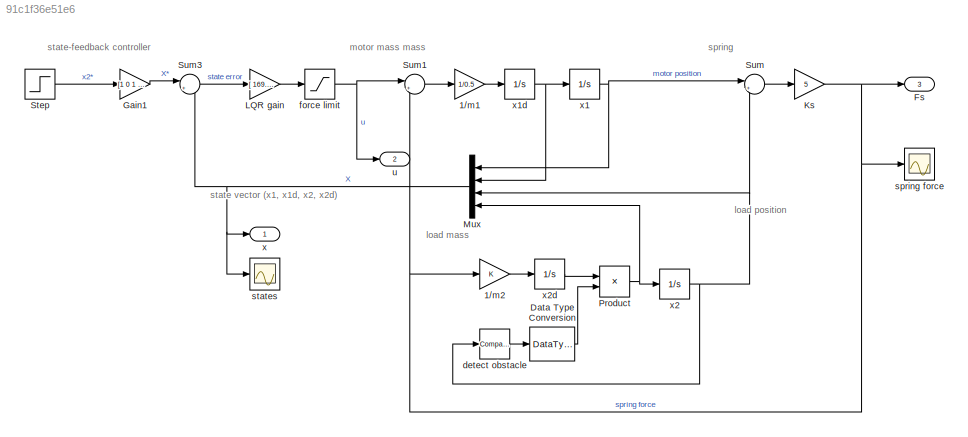
MODEL slx_91c1f36e51e6
KIND model
CONFIG AbsTol = auto
CONFIG FixedStep = auto
CONFIG MaxStep = auto
CONFIG MinStep = auto
CONFIG RelTol = 1e-3
CONFIG SampleTimeConstraint = Unconstrained
CONFIG Solver = ode45
CONFIG SolverMode = Auto
CONFIG SolverName = ode45
CONFIG StartTime = 0.0
CONFIG StopTime = 5
BLOCK [Gain] 1//m1
  Gain = 1/0.5
  OutDataTypeStr = Inherit: Inherit via internal rule
  ParamDataTypeStr = Inherit: Inherit via internal rule
  SaturateOnIntegerOverflow = off
BLOCK [Gain] 1//m2
  OutDataTypeStr = Inherit: Inherit via internal rule
  ParamDataTypeStr = Inherit: Inherit via internal rule
  SaturateOnIntegerOverflow = off
BLOCK [DataTypeConversion] Data Type Conversion
  OutDataTypeStr = double
  RndMeth = Floor
  SaturateOnIntegerOverflow = off
BLOCK [Outport] Fs
  IconDisplay = Port number
  Port = 3
BLOCK [Gain] Gain1
  Gain = [1 0 1 0]
  OutDataTypeStr = Inherit: Inherit via internal rule
  ParamDataTypeStr = Inherit: Inherit via internal rule
  SaturateOnIntegerOverflow = off
BLOCK [Gain] Ks
  Gain = 5
  OutDataTypeStr = Inherit: Inherit via internal rule
  ParamDataTypeStr = Inherit: Inherit via internal rule
  SaturateOnIntegerOverflow = off
BLOCK [Gain] LQR gain
  Gain = [  169.9563   62.9010  -19.9563   71.1092\n]
  Multiplication = Matrix(K*u)
  OutDataTypeStr = Inherit: Inherit via internal rule
  ParamDataTypeStr = Inherit: Inherit via internal rule
  SaturateOnIntegerOverflow = off
BLOCK [Mux] Mux
  DisplayOption = bar
  Ports = [4, 1]
BLOCK [Product] Product
  InputSameDT = off
  OutDataTypeStr = Inherit: Inherit via internal rule
  Ports = [2, 1]
  RndMeth = Floor
  SaturateOnIntegerOverflow = off
BLOCK [Step] Step
  SampleTime = 0
BLOCK [Sum] Sum
  IconShape = round
  InputSameDT = off
  Inputs = |+-
  OutDataTypeStr = Inherit: Inherit via internal rule
  Ports = [2, 1]
  SaturateOnIntegerOverflow = off
BLOCK [Sum] Sum1
  IconShape = round
  InputSameDT = off
  Inputs = |+-
  OutDataTypeStr = Inherit: Inherit via internal rule
  Ports = [2, 1]
  SaturateOnIntegerOverflow = off
BLOCK [Sum] Sum3
  IconShape = round
  InputSameDT = off
  Inputs = |+-
  OutDataTypeStr = Inherit: Inherit via internal rule
  Ports = [2, 1]
  SaturateOnIntegerOverflow = off
BLOCK [Reference] detect obstacle  REF=simulink/Logic and Bit
Operations/Compare
To Constant
  OutDataTypeStr = boolean
  Ports = [1, 1]
  SourceBlock = simulink/Logic and Bit\nOperations/Compare\nTo Constant
  SourceType = Compare To Constant
  ZeroCross = on
  const = 0.8
  relop = <
BLOCK [Saturate] force limit
  InputPortMap = u0
  LowerLimit = -2
  Ports = [1, 1]
  UpperLimit = 2
BLOCK [Scope] spring force
  DataFormat = StructureWithTime
  Decimation = 1
  Floating = off
  Grid = on
  LimitDataPoints = off
  MaxDataPoints = 5000
  NumInputPorts = 1
  Ports = [1]
  SampleInput = off
  SampleTime = -1
  SaveName = ScopeData2
  SaveToWorkspace = off
  ShowLegends = off
  TickLabels = OneTimeTick
  TimeRange = auto
  YMax = 2.3062
  YMin = -1.76147
  ZoomMode = on
BLOCK [Scope] states
  DataFormat = StructureWithTime
  Decimation = 1
  Floating = off
  Grid = on
  LimitDataPoints = off
  MaxDataPoints = 5000
  NumInputPorts = 1
  Ports = [1]
  SampleInput = off
  SampleTime = -1
  SaveName = ScopeData3
  SaveToWorkspace = off
  ShowLegends = on
  TickLabels = OneTimeTick
  TimeRange = auto
  YMax = 1.42305
  YMin = -0.25051
  ZoomMode = on
BLOCK [Outport] u
  IconDisplay = Port number
  Port = 2
BLOCK [Outport] x
  IconDisplay = Port number
BLOCK [Integrator] x1
  Ports = [1, 1]
BLOCK [Integrator] x1d
  Ports = [1, 1]
BLOCK [Integrator] x2
  Ports = [1, 1]
BLOCK [Integrator] x2d
  Ports = [1, 1]
ANNOTATION (root): load mass
ANNOTATION (root): load position
ANNOTATION (root): motor mass mass
ANNOTATION (root): spring
ANNOTATION (root): state vector (x1, x1d, x2, x2d)
ANNOTATION (root): state-feedback controller
LINE 1//m1:1 -> x1d:1
LINE 1//m2:1 -> x2d:1
LINE Data Type Conversion:1 -> Product:2
LINE Gain1:1 -> Sum3:1
NET Ks:1 -> 1//m2:1, Fs:1, Sum1:2, spring force:1
LINE LQR gain:1 -> force limit:1
NET Mux:1 -> Sum3:2, states:1, x:1
NET Product:1 -> Mux:4, x2:1
LINE Step:1 -> Gain1:1
LINE Sum1:1 -> 1//m1:1
LINE Sum3:1 -> LQR gain:1
LINE Sum:1 -> Ks:1
LINE detect obstacle:1 -> Data Type Conversion:1
NET force limit:1 -> Sum1:1, u:1
NET x1:1 -> Mux:1, Sum:1
NET x1d:1 -> Mux:2, x1:1
NET x2:1 -> Mux:3, Sum:2, detect obstacle:1
LINE x2d:1 -> Product:1
note: NET lines group one-source signal fan-out (src -> all destinations, sorted); 1:1 wires keep LINE
